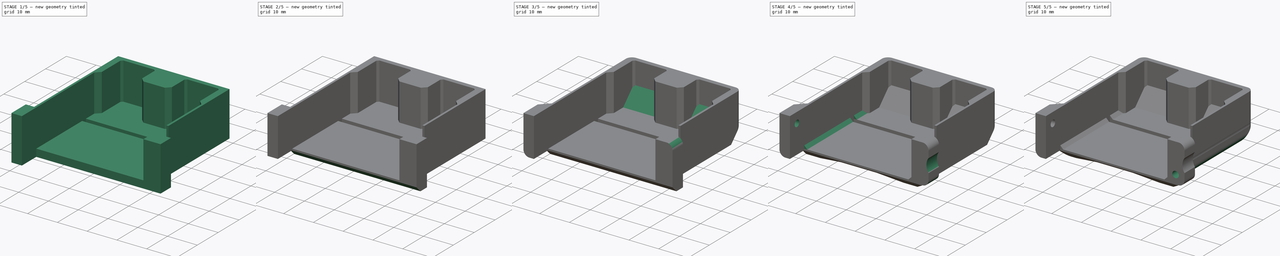
[diagram: build sequence overview — one tinted view per stage of 5, left to right]
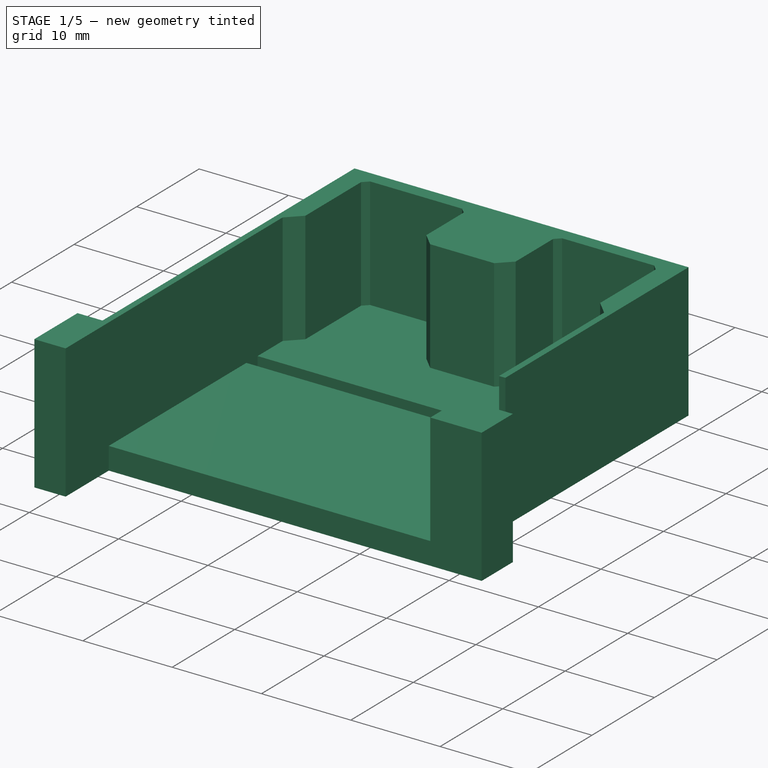
[diagram: stage 1 of 5 — iso view after this stage's code; geometry added in this stage tinted green]
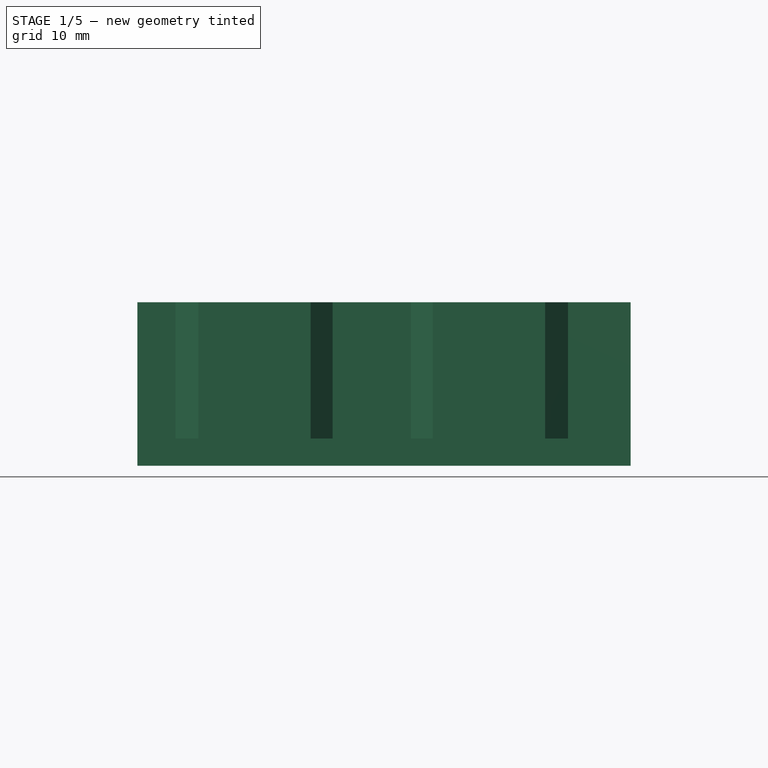
[diagram: stage 1 of 5 — front view after this stage's code; geometry added in this stage tinted green]
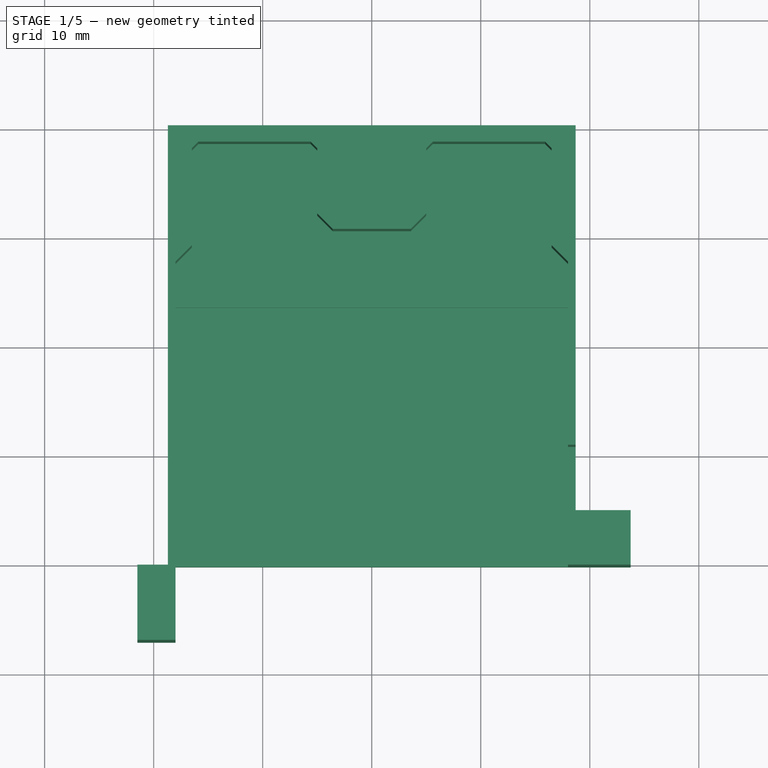
[diagram: stage 1 of 5 — top view after this stage's code; geometry added in this stage tinted green]
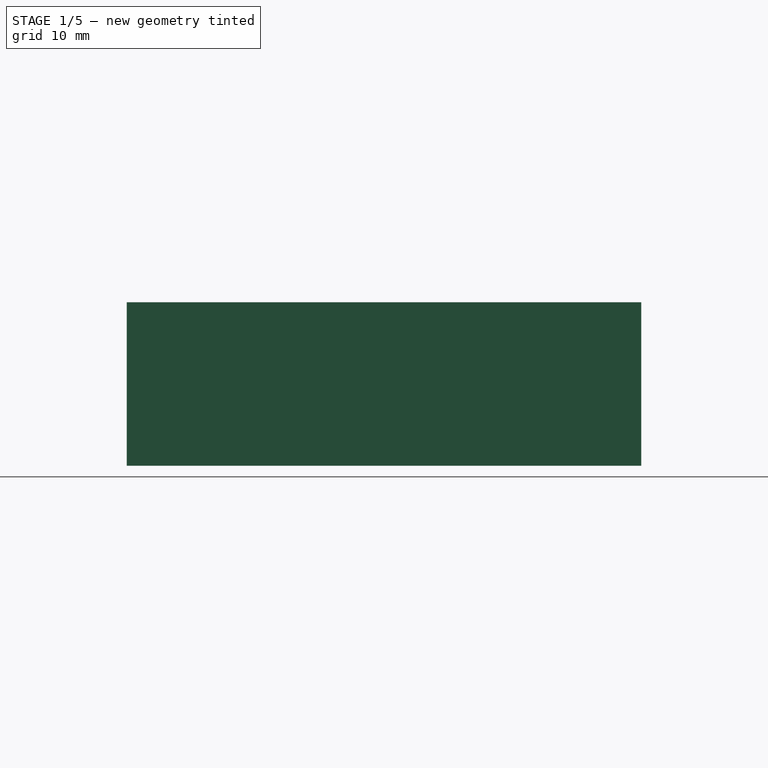
[diagram: stage 1 of 5 — right view after this stage's code; geometry added in this stage tinted green]
FCSTD DOCUMENT  (FreeCAD 1.0R39285 (Git))
Label: valve_cap
License: All rights reserved
LicenseURL: https://en.wikipedia.org/wiki/All_rights_reserved
objects: Sketcher::SketchObject×9, PartDesign::Pocket×9, PartDesign::Chamfer×6, PartDesign::Fillet×3, PartDesign::Pad×2, PartDesign::Body×1
note: 79 computed .brp shape members not serialized (recipe doc carries the construction recipe); baked Part::Feature solids carry a one-line shape summary decoded from their .brp

FEATURE [Sketcher::SketchObject] Sketch
  ArcFitTolerance = 1e-06
  AttachmentSupport = -> [XY_Plane]
  FullyConstrained = true
  MakeInternals = false
  MapMode = 5
  sketch-geometry (36):
    g0: LineSegment [constr] StartX=-18.7 StartY=-20.15 StartZ=0 EndX=18.7 EndY=-20.15 EndZ=0
    g1: LineSegment [constr] StartX=18.7 StartY=-20.15 StartZ=0 EndX=18.7 EndY=20.15 EndZ=0
    g2: LineSegment StartX=18.7 StartY=20.15 StartZ=0 EndX=-18.7 EndY=20.15 EndZ=0
    g3: LineSegment StartX=-18.7 StartY=20.15 StartZ=0 EndX=-18.7 EndY=-20.15 EndZ=0
    g4: GeomPoint [constr] X=0 Y=0 Z=0
    g5: LineSegment [constr] StartX=-18 StartY=-20.15 StartZ=0 EndX=-21.5 EndY=-20.15 EndZ=0
    g6: LineSegment StartX=-21.5 StartY=-20.15 StartZ=0 EndX=-21.5 EndY=-27.05 EndZ=0
    g7: LineSegment StartX=-21.5 StartY=-27.05 StartZ=0 EndX=-18 EndY=-27.05 EndZ=0
    g8: LineSegment StartX=-18 StartY=-27.05 StartZ=0 EndX=-18 EndY=-20.15 EndZ=0
    g9: LineSegment StartX=18.7 StartY=-15.15 StartZ=0 EndX=18.7 EndY=20.15 EndZ=0
    g10: LineSegment StartX=-18 StartY=-20.15 StartZ=0 EndX=18.7 EndY=-20.15 EndZ=0
    g11: LineSegment StartX=-18.7 StartY=-20.15 StartZ=0 EndX=-21.5 EndY=-20.15 EndZ=0
    g12: LineSegment StartX=18 StartY=-20.15 StartZ=0 EndX=23.75 EndY=-20.15 EndZ=0
    g13: LineSegment StartX=23.75 StartY=-20.15 StartZ=0 EndX=23.75 EndY=-15.15 EndZ=0
    g14: LineSegment StartX=23.75 StartY=-15.15 StartZ=0 EndX=18 EndY=-15.15 EndZ=0
    g15: LineSegment StartX=18 StartY=-15.15 StartZ=0 EndX=18 EndY=-20.15 EndZ=0
    g16: LineSegment StartX=-18 StartY=-20.15 StartZ=0 EndX=-18 EndY=7.65 EndZ=0
    g17: LineSegment StartX=18 StartY=-15.15 StartZ=0 EndX=18 EndY=7.65 EndZ=0
    g18: LineSegment StartX=-18 StartY=1.85 StartZ=0 EndX=18 EndY=1.85 EndZ=0
    g19: LineSegment StartX=-18 StartY=3.65 StartZ=0 EndX=18 EndY=3.65 EndZ=0
    g20: LineSegment StartX=18 StartY=-9.15 StartZ=0 EndX=18.7 EndY=-9.15 EndZ=0
    g21: LineSegment StartX=-18 StartY=7.65 StartZ=0 EndX=-16.5 EndY=9.15 EndZ=0
    g22: LineSegment StartX=-16.5 StartY=9.15 StartZ=0 EndX=-16.5 EndY=18.05 EndZ=0
    g23: LineSegment StartX=-16.5 StartY=18.05 StartZ=0 EndX=-15.9 EndY=18.65 EndZ=0
    g24: LineSegment StartX=-15.9 StartY=18.65 StartZ=0 EndX=-5.6 EndY=18.65 EndZ=0
    g25: LineSegment StartX=-5.6 StartY=18.65 StartZ=0 EndX=-5 EndY=18.05 EndZ=0
    g26: LineSegment StartX=-5 StartY=18.05 StartZ=0 EndX=-5 EndY=12.0642 EndZ=0
    g27: LineSegment StartX=-5 StartY=12.0642 StartZ=0 EndX=-3.58579 EndY=10.65 EndZ=0
    g28: LineSegment StartX=-3.58579 StartY=10.65 StartZ=0 EndX=3.58579 EndY=10.65 EndZ=0
    g29: LineSegment StartX=3.58579 StartY=10.65 StartZ=0 EndX=5 EndY=12.0642 EndZ=0
    g30: LineSegment StartX=5 StartY=12.0642 StartZ=0 EndX=5 EndY=18.05 EndZ=0
    g31: LineSegment StartX=5 StartY=18.05 StartZ=0 EndX=5.6 EndY=18.65 EndZ=0
    g32: LineSegment StartX=5.6 StartY=18.65 StartZ=0 EndX=15.9 EndY=18.65 EndZ=0
    g33: LineSegment StartX=15.9 StartY=18.65 StartZ=0 EndX=16.5 EndY=18.05 EndZ=0
    g34: LineSegment StartX=16.5 StartY=18.05 StartZ=0 EndX=16.5 EndY=9.15 EndZ=0
    g35: LineSegment StartX=16.5 StartY=9.15 StartZ=0 EndX=18 EndY=7.65 EndZ=0
  constraints (105):
    c: Coincident(g0,g1)
    c: Coincident(g1,g2)
    c: Coincident(g2,g3)
    c: Coincident(g3,g0)
    c: Horizontal(g0)
    c: Horizontal(g2)
    c: Vertical(g1)
    c: Vertical(g3)
    c: Symmetric(g2,g0,g4)
    c: Coincident(g4,g-1)
    c: Coincident(g5,g6)
    c: Coincident(g6,g7)
    c: Coincident(g7,g8)
    c: Coincident(g8,g5)
    c: Horizontal(g5)
    c: Horizontal(g7)
    c: Vertical(g6)
    c: Vertical(g8)
    c: PointOnObject(g5,g0)
    c: Distance(g0,g2) = 40.3
    c: Distance(g3,g1) = 37.4
    c: Coincident(g9,g1)
    c: Distance(g3,g6) = 2.8
    c: Coincident(g10,g5)
    c: Coincident(g10,g0)
    c: DistanceX(g7,g7) = 3.5
    c: DistanceY(g6,g6) = 6.9
    c: Coincident(g11,g0)
    c: Coincident(g11,g5)
    c: Coincident(g12,g13)
    c: Coincident(g13,g14)
    c: Coincident(g14,g15)
    c: Coincident(g15,g12)
    c: Horizontal(g12)
    c: Horizontal(g14)
    c: Vertical(g13)
    c: Vertical(g15)
    c: PointOnObject(g12,g10)
    c: PointOnObject(g9,g14)
    c: Perpendicular(g2,g9)
    c: Distance(g13,g15) = 5.75
    c: Distance(g9,g13) = 5.05
    c: Distance(g12,g14) = 5
    c: Coincident(g16,g5)
    c: Vertical(g16)
    c: Coincident(g17,g14)
    c: Vertical(g17)
    c: PointOnObject(g18,g16)
    c: PointOnObject(g18,g17)
    c: Horizontal(g18)
    c: Distance(g10,g18) = 22
    c: PointOnObject(g19,g16)
    c: PointOnObject(g19,g17)
    c: Horizontal(g19)
    c: Distance(g18,g19) = 1.8
    c: PointOnObject(g20,g17)
    c: PointOnObject(g20,g9)
    c: Horizontal(g20)
    c: Distance(g14,g20) = 6
    c: Coincident(g21,g16)
    c: Vertical(g22)
    c: Coincident(g23,g22)
    c: Coincident(g23,g24)
    c: Horizontal(g24)
    c: Coincident(g24,g25)
    c: Coincident(g25,g26)
    c: Vertical(g26)
    c: Coincident(g26,g27)
    c: Coincident(g27,g28)
    c: Horizontal(g28)
    c: Coincident(g28,g29)
    c: Coincident(g29,g30)
    c: Vertical(g30)
    c: Coincident(g30,g31)
    c: Coincident(g31,g32)
    c: Horizontal(g32)
    c: Coincident(g32,g33)
    c: Coincident(g33,g34)
    c: Vertical(g34)
    c: Coincident(g34,g35)
    c: Coincident(g35,g17)
    c: Distance(g2,g24) = 1.5
    c: Distance(g2,g32) = 1.5
    c: Distance(g22,g16) = 1.5
    c: Distance(g34,g17) = 1.5
    c: Coincident(g21,g22)
    c: Distance(g26,g22) = 11.5
    c: Distance(g34,g30) = 11.5
    c: Distance(g28,g2) = 9.5
    c: Angle(g16,g21) = 2.35619
    c: Angle(g22,g23) = 2.35619
    c: Angle(g24,g25) = 2.35619
    c: Angle(g27,g26) = 2.35619
    c: Distance(g24,g26) = 0.6
    c: Distance(g23,g22) = 0.6
    c: Angle(g29,g28) = 2.35619
    c: Angle(g30,g31) = 2.35619
    c: Angle(g32,g33) = 2.35619
    c: Angle(g35,g34) = 2.35619
    c: DistanceX(g32,g32) = 10.3
    c: DistanceY(g22,g22) = 8.9
    c: DistanceY(g34,g34) = 8.9
    c: Distance(g32,g34) = 0.6
    c: Distance(g29,g29) = 2
    c: Distance(g27,g27) = 2
FEATURE [Sketcher::SketchObject] Sketch002
  ArcFitTolerance = 1e-06
  AttachmentSupport = -> [XY_Plane]
  ExternalGeometry = -> [Sketch]
  FullyConstrained = true
  MakeInternals = false
  MapMode = 5
  sketch-geometry (18):
    g0: LineSegment StartX=-18 StartY=-20.15 StartZ=0 EndX=-18 EndY=7.65 EndZ=0
    g1: LineSegment StartX=-18 StartY=7.65 StartZ=0 EndX=-16.5 EndY=9.15 EndZ=0
    g2: LineSegment StartX=-16.5 StartY=9.15 StartZ=0 EndX=-16.5 EndY=18.05 EndZ=0
    g3: LineSegment StartX=-16.5 StartY=18.05 StartZ=0 EndX=-15.9 EndY=18.65 EndZ=0
    g4: LineSegment StartX=-15.9 StartY=18.65 StartZ=0 EndX=-5.6 EndY=18.65 EndZ=0
    g5: LineSegment StartX=-5.6 StartY=18.65 StartZ=0 EndX=-5 EndY=18.05 EndZ=0
    g6: LineSegment StartX=-5 StartY=18.05 StartZ=0 EndX=-5 EndY=12.0642 EndZ=0
    g7: LineSegment StartX=-5 StartY=12.0642 StartZ=0 EndX=-3.58579 EndY=10.65 EndZ=0
    g8: LineSegment StartX=-3.58579 StartY=10.65 StartZ=0 EndX=3.58579 EndY=10.65 EndZ=0
    g9: LineSegment StartX=3.58579 StartY=10.65 StartZ=0 EndX=5 EndY=12.0642 EndZ=0
    g10: LineSegment StartX=5 StartY=12.0642 StartZ=0 EndX=5 EndY=18.05 EndZ=0
    g11: LineSegment StartX=5 StartY=18.05 StartZ=0 EndX=5.6 EndY=18.65 EndZ=0
    g12: LineSegment StartX=5.6 StartY=18.65 StartZ=0 EndX=15.9 EndY=18.65 EndZ=0
    g13: LineSegment StartX=15.9 StartY=18.65 StartZ=0 EndX=16.5 EndY=18.05 EndZ=0
    g14: LineSegment StartX=16.5 StartY=18.05 StartZ=0 EndX=16.5 EndY=9.15 EndZ=0
    g15: LineSegment StartX=16.5 StartY=9.15 StartZ=0 EndX=18 EndY=7.65 EndZ=0
    g16: LineSegment StartX=18 StartY=7.65 StartZ=0 EndX=18 EndY=-20.15 EndZ=0
    g17: LineSegment StartX=18 StartY=-20.15 StartZ=0 EndX=-18 EndY=-20.15 EndZ=0
  constraints (36):
    c: Coincident(g-4,g0)
    c: Coincident(g0,g-5)
    c: Coincident(g0,g1)
    c: Coincident(g1,g-6)
    c: Coincident(g1,g2)
    c: Coincident(g2,g-6)
    c: Coincident(g2,g3)
    c: Coincident(g3,g-7)
    c: Coincident(g3,g4)
    c: Coincident(g4,g-7)
    c: Coincident(g4,g5)
    c: Coincident(g5,g-8)
    c: Coincident(g5,g6)
    c: Coincident(g6,g-8)
    c: Coincident(g6,g7)
    c: Coincident(g7,g-9)
    c: Coincident(g7,g8)
    c: Coincident(g8,g-9)
    c: Coincident(g8,g9)
    c: Coincident(g9,g-10)
    c: Coincident(g9,g10)
    c: Coincident(g10,g-10)
    c: Coincident(g10,g11)
    c: Coincident(g11,g-11)
    c: Coincident(g11,g12)
    c: Coincident(g12,g-11)
    c: Coincident(g12,g13)
    c: Coincident(g13,g-12)
    c: Coincident(g13,g14)
    c: Coincident(g14,g-12)
    c: Coincident(g14,g15)
    c: Coincident(g15,g-13)
    c: Coincident(g15,g16)
    c: Coincident(g16,g-14)
    c: Coincident(g16,g17)
    c: Coincident(g17,g0)
FEATURE [PartDesign::Pad] Pad
  Direction = (0,0,1)
  Length = 2.5
  Length2 = 10
  Profile = -> Sketch002
  ReferenceAxis = -> Sketch002 [N_Axis]
  Refine = true
  Suppressed = false
  Type = 0
FEATURE [Sketcher::SketchObject] Sketch003
  ArcFitTolerance = 1e-06
  AttachmentSupport = -> [Pad]
  ExternalGeometry = -> [Sketch]
  FullyConstrained = true
  MakeInternals = false
  MapMode = 5
  Placement = pos=(0,0,2.5) rot=(0,0,1;0rad)
  sketch-geometry (4):
    g0: LineSegment StartX=-18 StartY=3.65 StartZ=0 EndX=-18 EndY=1.85 EndZ=0
    g1: LineSegment StartX=-18 StartY=1.85 StartZ=0 EndX=18 EndY=1.85 EndZ=0
    g2: LineSegment StartX=18 StartY=1.85 StartZ=0 EndX=18 EndY=3.65 EndZ=0
    g3: LineSegment StartX=18 StartY=3.65 StartZ=0 EndX=-18 EndY=3.65 EndZ=0
  constraints (10):
    c: Coincident(g0,g1)
    c: Coincident(g1,g2)
    c: Coincident(g2,g3)
    c: Coincident(g3,g0)
    c: Vertical(g0)
    c: Vertical(g2)
    c: Horizontal(g1)
    c: Horizontal(g3)
    c: Coincident(g0,g-3)
    c: Coincident(g1,g-4)
FEATURE [PartDesign::Pocket] Pocket
  BaseFeature = -> Pad
  Direction = (0,0,-1)
  Length = 1.3
  Length2 = 5
  Profile = -> Sketch003
  ReferenceAxis = -> Sketch003 [N_Axis]
  Refine = true
  Suppressed = false
  Type = 0
FEATURE [Sketcher::SketchObject] Sketch004
  ArcFitTolerance = 1e-06
  AttachmentSupport = -> [XY_Plane]
  ExternalGeometry = -> [Sketch,Pocket]
  FullyConstrained = true
  MakeInternals = false
  MapMode = 5
  sketch-geometry (26):
    g0: LineSegment StartX=-18.7 StartY=-20.15 StartZ=0 EndX=-21.5 EndY=-20.15 EndZ=0
    g1: LineSegment StartX=-21.5 StartY=-20.15 StartZ=0 EndX=-21.5 EndY=-27.05 EndZ=0
    g2: LineSegment StartX=-21.5 StartY=-27.05 StartZ=0 EndX=-18 EndY=-27.05 EndZ=0
    g3: LineSegment StartX=-18 StartY=-27.05 StartZ=0 EndX=-18 EndY=7.65 EndZ=0
    g4: LineSegment StartX=-18 StartY=7.65 StartZ=0 EndX=-16.5 EndY=9.15 EndZ=0
    g5: LineSegment StartX=-16.5 StartY=9.15 StartZ=0 EndX=-16.5 EndY=18.05 EndZ=0
    g6: LineSegment StartX=-16.5 StartY=18.05 StartZ=0 EndX=-15.9 EndY=18.65 EndZ=0
    g7: LineSegment StartX=-15.9 StartY=18.65 StartZ=0 EndX=-5.6 EndY=18.65 EndZ=0
    g8: LineSegment StartX=-5.6 StartY=18.65 StartZ=0 EndX=-5 EndY=18.05 EndZ=0
    g9: LineSegment StartX=-5 StartY=18.05 StartZ=0 EndX=-5 EndY=12.0642 EndZ=0
    g10: LineSegment StartX=-5 StartY=12.0642 StartZ=0 EndX=-3.58579 EndY=10.65 EndZ=0
    g11: LineSegment StartX=-3.58579 StartY=10.65 StartZ=0 EndX=3.58579 EndY=10.65 EndZ=0
    g12: LineSegment StartX=3.58579 StartY=10.65 StartZ=0 EndX=5 EndY=12.0642 EndZ=0
    g13: LineSegment StartX=5 StartY=12.0642 StartZ=0 EndX=5 EndY=18.05 EndZ=0
    g14: LineSegment StartX=5 StartY=18.05 StartZ=0 EndX=5.6 EndY=18.65 EndZ=0
    g15: LineSegment StartX=5.6 StartY=18.65 StartZ=0 EndX=15.9 EndY=18.65 EndZ=0
    g16: LineSegment StartX=15.9 StartY=18.65 StartZ=0 EndX=16.5 EndY=18.05 EndZ=0
    g17: LineSegment StartX=16.5 StartY=18.05 StartZ=0 EndX=16.5 EndY=9.15 EndZ=0
    g18: LineSegment StartX=16.5 StartY=9.15 StartZ=0 EndX=18 EndY=7.65 EndZ=0
    g19: LineSegment StartX=18 StartY=7.65 StartZ=0 EndX=18 EndY=-20.15 EndZ=0
    g20: LineSegment StartX=18 StartY=-20.15 StartZ=0 EndX=23.75 EndY=-20.15 EndZ=0
    g21: LineSegment StartX=23.75 StartY=-20.15 StartZ=0 EndX=23.75 EndY=-15.15 EndZ=0
    g22: LineSegment StartX=23.75 StartY=-15.15 StartZ=0 EndX=18.7 EndY=-15.15 EndZ=0
    g23: LineSegment StartX=18.7 StartY=-15.15 StartZ=0 EndX=18.7 EndY=20.15 EndZ=0
    g24: LineSegment StartX=18.7 StartY=20.15 StartZ=0 EndX=-18.7 EndY=20.15 EndZ=0
    g25: LineSegment StartX=-18.7 StartY=20.15 StartZ=0 EndX=-18.7 EndY=-20.15 EndZ=0
  constraints (52):
    c: Coincident(g-8,g0)
    c: Coincident(g0,g-6)
    c: Coincident(g0,g1)
    c: Coincident(g1,g-4)
    c: Coincident(g1,g2)
    c: Coincident(g2,g-5)
    c: Coincident(g2,g3)
    c: Coincident(g3,g-23)
    c: Coincident(g3,g4)
    c: Coincident(g4,g-22)
    c: Coincident(g4,g5)
    c: Coincident(g5,g-22)
    c: Coincident(g5,g6)
    c: Coincident(g6,g-21)
    c: Coincident(g6,g7)
    c: Coincident(g7,g-21)
    c: Coincident(g7,g8)
    c: Coincident(g8,g-20)
    c: Coincident(g8,g9)
    c: Coincident(g9,g-20)
    c: Coincident(g9,g10)
    c: Coincident(g10,g-19)
    c: Coincident(g10,g11)
    c: Coincident(g11,g-19)
    c: Coincident(g11,g12)
    c: Coincident(g12,g-18)
    c: Coincident(g12,g13)
    c: Coincident(g13,g-18)
    c: Coincident(g13,g14)
    c: Coincident(g14,g-17)
    c: Coincident(g14,g15)
    c: Coincident(g15,g-17)
    c: Coincident(g15,g16)
    c: Coincident(g16,g-16)
    c: Coincident(g16,g17)
    c: Coincident(g17,g-16)
    c: Coincident(g17,g18)
    c: Coincident(g18,g-15)
    c: Coincident(g18,g19)
    c: Coincident(g19,g-14)
    c: Coincident(g19,g20)
    c: Coincident(g20,g-13)
    c: Coincident(g20,g21)
    c: Coincident(g21,g-12)
    c: Coincident(g21,g22)
    c: Coincident(g22,g-10)
    c: Coincident(g22,g23)
    c: Coincident(g23,g-10)
    c: Coincident(g23,g24)
    c: Coincident(g24,g-9)
    c: Coincident(g24,g25)
    c: Coincident(g25,g0)
FEATURE [PartDesign::Pad] Pad001
  BaseFeature = -> Pocket
  Direction = (0,0,1)
  Length = 15
  Length2 = 10
  Profile = -> Sketch004
  ReferenceAxis = -> Sketch004 [N_Axis]
  Refine = true
  Suppressed = false
  Type = 0
FEATURE [Sketcher::SketchObject] Sketch005
  ArcFitTolerance = 1e-06
  AttachmentSupport = -> [Pad001]
  ExternalGeometry = -> [Sketch]
  FullyConstrained = true
  MakeInternals = false
  MapMode = 5
  Placement = pos=(0,0,15) rot=(0,0,1;0rad)
  sketch-geometry (4):
    g0: LineSegment StartX=18.7 StartY=-9.15 StartZ=0 EndX=18 EndY=-9.15 EndZ=0
    g1: LineSegment StartX=18 StartY=-9.15 StartZ=0 EndX=18 EndY=-15.15 EndZ=0
    g2: LineSegment StartX=18 StartY=-15.15 StartZ=0 EndX=18.7 EndY=-15.15 EndZ=0
    g3: LineSegment StartX=18.7 StartY=-15.15 StartZ=0 EndX=18.7 EndY=-9.15 EndZ=0
  constraints (10):
    c: Coincident(g0,g1)
    c: Coincident(g1,g2)
    c: Coincident(g2,g3)
    c: Coincident(g3,g0)
    c: Horizontal(g0)
    c: Horizontal(g2)
    c: Vertical(g1)
    c: Vertical(g3)
    c: Coincident(g0,g-3)
    c: Coincident(g1,g-4)
FEATURE [PartDesign::Pocket] Pocket001
  BaseFeature = -> Pad001
  Direction = (0,0,-1)
  Length = 11.3
  Length2 = 5
  Profile = -> Sketch005
  ReferenceAxis = -> Sketch005 [N_Axis]
  Refine = true
  Suppressed = false
  Type = 0
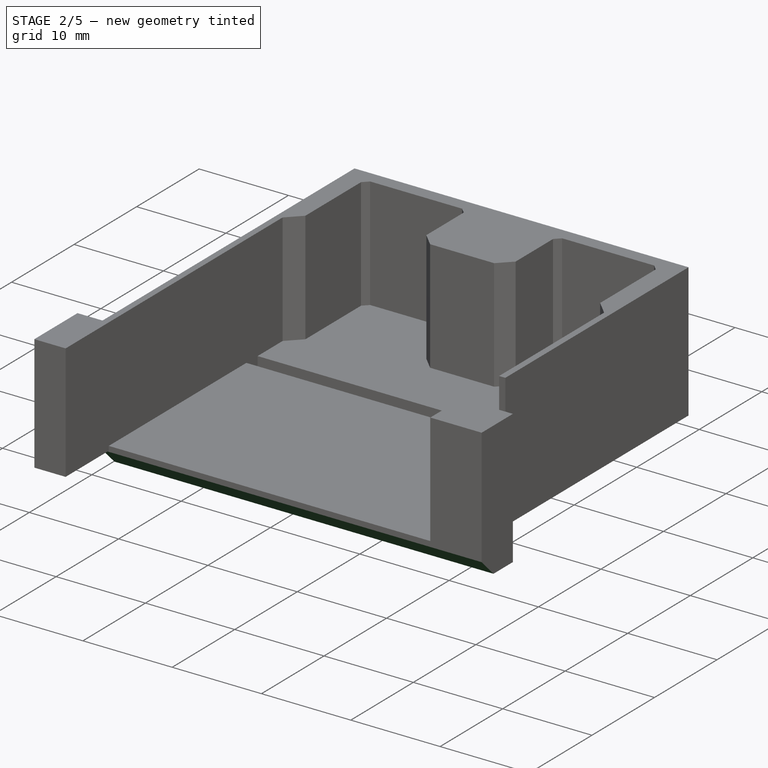
[diagram: stage 2 of 5 — iso view after this stage's code; geometry added in this stage tinted green]
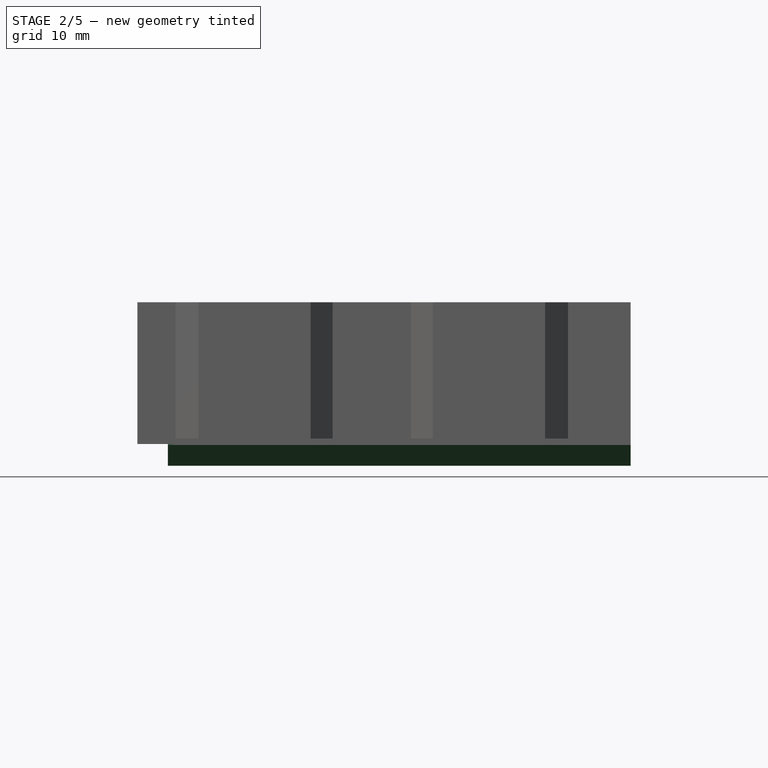
[diagram: stage 2 of 5 — front view after this stage's code; geometry added in this stage tinted green]
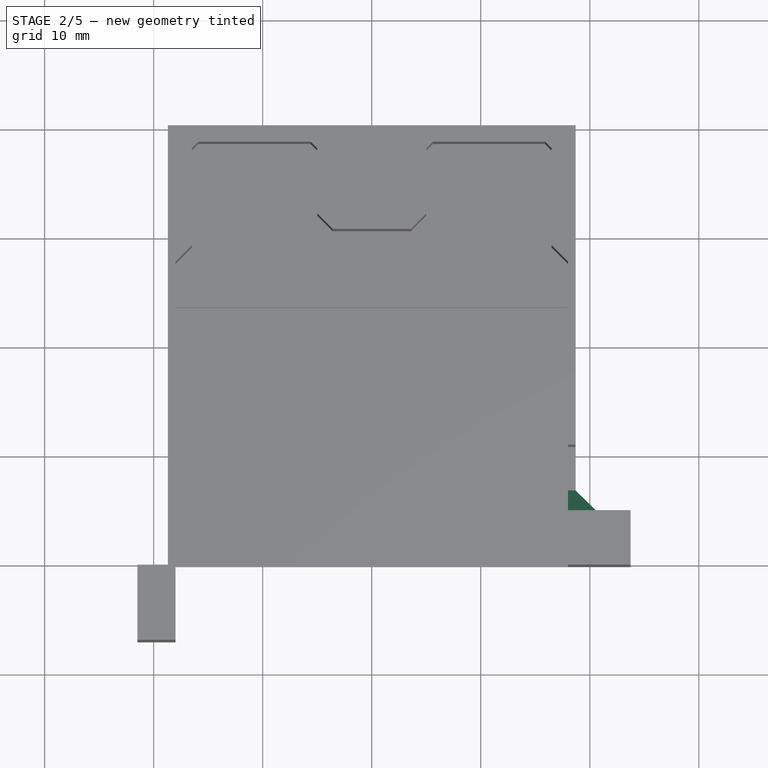
[diagram: stage 2 of 5 — top view after this stage's code; geometry added in this stage tinted green]
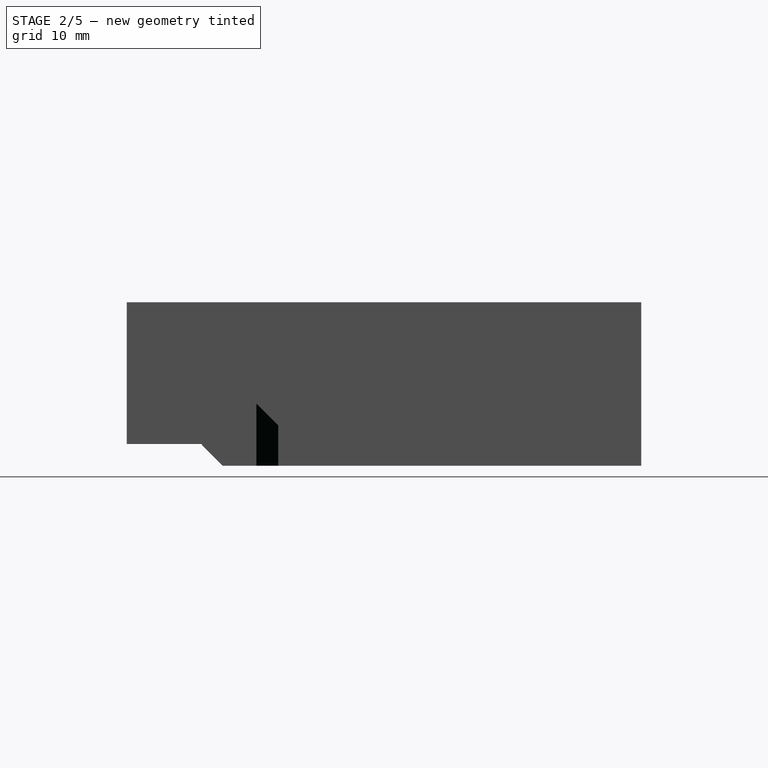
[diagram: stage 2 of 5 — right view after this stage's code; geometry added in this stage tinted green]
FEATURE [Sketcher::SketchObject] Sketch006
  ArcFitTolerance = 1e-06
  AttachmentSupport = -> [Pocket001]
  ExternalGeometry = -> [Pocket001]
  FullyConstrained = true
  MakeInternals = false
  MapMode = 5
  Placement = pos=(-21.5,0,0) rot=(0.57735,-0.57735,-0.57735;2.0944rad)
  sketch-geometry (4):
    g0: LineSegment StartX=27.05 StartY=0 StartZ=0 EndX=27.05 EndY=2 EndZ=0
    g1: LineSegment StartX=27.05 StartY=2 StartZ=0 EndX=20.15 EndY=2 EndZ=0
    g2: LineSegment StartX=20.15 StartY=2 StartZ=0 EndX=20.15 EndY=0 EndZ=0
    g3: LineSegment StartX=20.15 StartY=0 StartZ=0 EndX=27.05 EndY=0 EndZ=0
  constraints (11):
    c: Coincident(g0,g1)
    c: Coincident(g1,g2)
    c: Coincident(g2,g3)
    c: Coincident(g3,g0)
    c: Vertical(g0)
    c: Vertical(g2)
    c: Horizontal(g1)
    c: Horizontal(g3)
    c: Distance(g1,g3) = 2
    c: Coincident(g0,g-3)
    c: PointOnObject(g1,g-4)
FEATURE [PartDesign::Pocket] Pocket002
  BaseFeature = -> Pocket001
  Direction = (1,0,0)
  Length = 5
  Length2 = 5
  Profile = -> Sketch006
  ReferenceAxis = -> Sketch006 [N_Axis]
  Refine = true
  Suppressed = false
  Type = 1
FEATURE [PartDesign::Chamfer] Chamfer
  Angle = 45
  Base = -> Pocket002 [Edge33]
  BaseFeature = -> Pocket002
  ChamferType = 0
  FlipDirection = false
  Refine = true
  Size = 1.9
  Size2 = 1
  SupportTransform = false
  Suppressed = false
  UseAllEdges = false
FEATURE [PartDesign::Chamfer] Chamfer001
  Angle = 45
  Base = -> Chamfer [Edge21]
  BaseFeature = -> Chamfer
  ChamferType = 0
  FlipDirection = false
  Refine = true
  Size = 2
  Size2 = 1
  SupportTransform = false
  Suppressed = false
  UseAllEdges = false
FEATURE [PartDesign::Chamfer] Chamfer002
  Angle = 45
  Base = -> Chamfer001 [Edge10,Edge12]
  BaseFeature = -> Chamfer001
  ChamferType = 0
  FlipDirection = false
  Refine = true
  Size = 2
  Size2 = 1
  SupportTransform = false
  Suppressed = false
  UseAllEdges = false
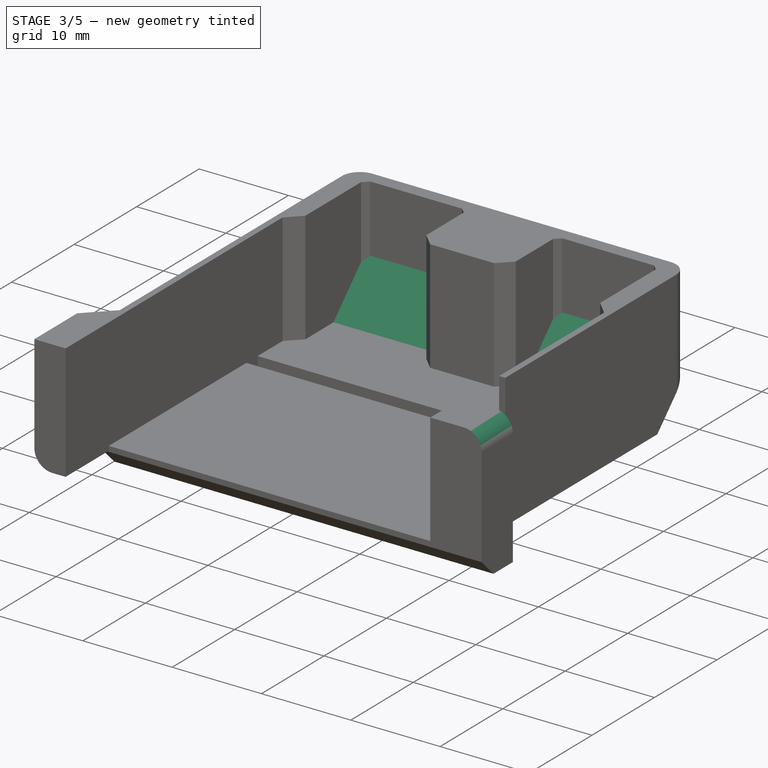
[diagram: stage 3 of 5 — iso view after this stage's code; geometry added in this stage tinted green]
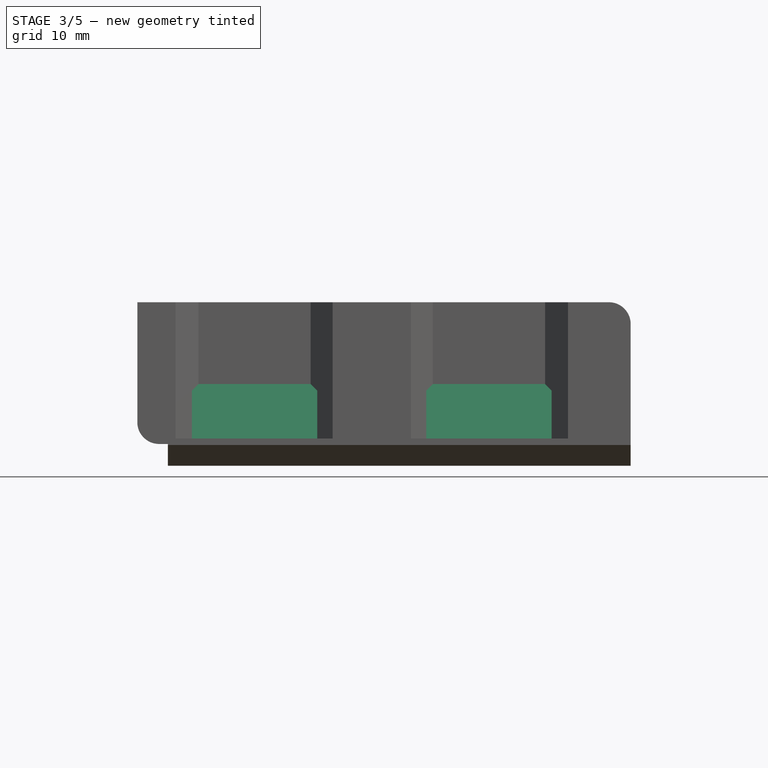
[diagram: stage 3 of 5 — front view after this stage's code; geometry added in this stage tinted green]
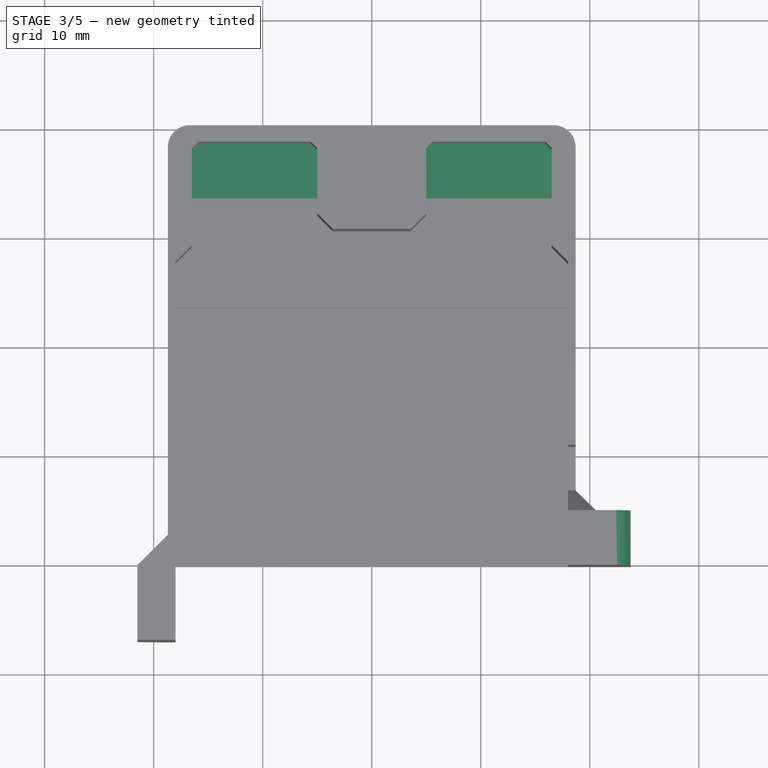
[diagram: stage 3 of 5 — top view after this stage's code; geometry added in this stage tinted green]
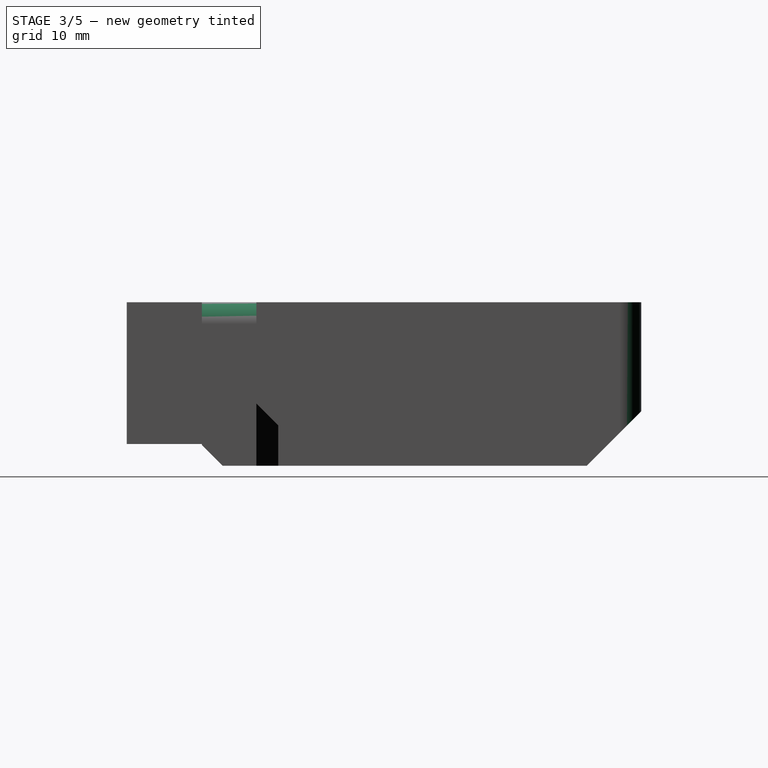
[diagram: stage 3 of 5 — right view after this stage's code; geometry added in this stage tinted green]
FEATURE [PartDesign::Chamfer] Chamfer003
  Angle = 45
  Base = -> Chamfer002 [Edge83,Edge75,Edge29]
  BaseFeature = -> Chamfer002
  ChamferType = 0
  FlipDirection = false
  Refine = true
  Size = 5
  Size2 = 1
  SupportTransform = false
  Suppressed = false
  UseAllEdges = false
FEATURE [PartDesign::Chamfer] Chamfer004
  Angle = 45
  Base = -> Chamfer003 [Edge22]
  BaseFeature = -> Chamfer003
  ChamferType = 0
  FlipDirection = false
  Refine = true
  Size = 2.75
  Size2 = 1
  SupportTransform = false
  Suppressed = false
  UseAllEdges = false
FEATURE [PartDesign::Fillet] Fillet
  Base = -> Chamfer004 [Edge38,Edge113]
  BaseFeature = -> Chamfer004
  Radius = 2
  Refine = true
  SupportTransform = false
  Suppressed = false
  UseAllEdges = false
FEATURE [PartDesign::Fillet] Fillet001
  Base = -> Fillet [Edge59,Edge15]
  BaseFeature = -> Fillet
  Radius = 2
  Refine = true
  SupportTransform = false
  Suppressed = false
  UseAllEdges = false
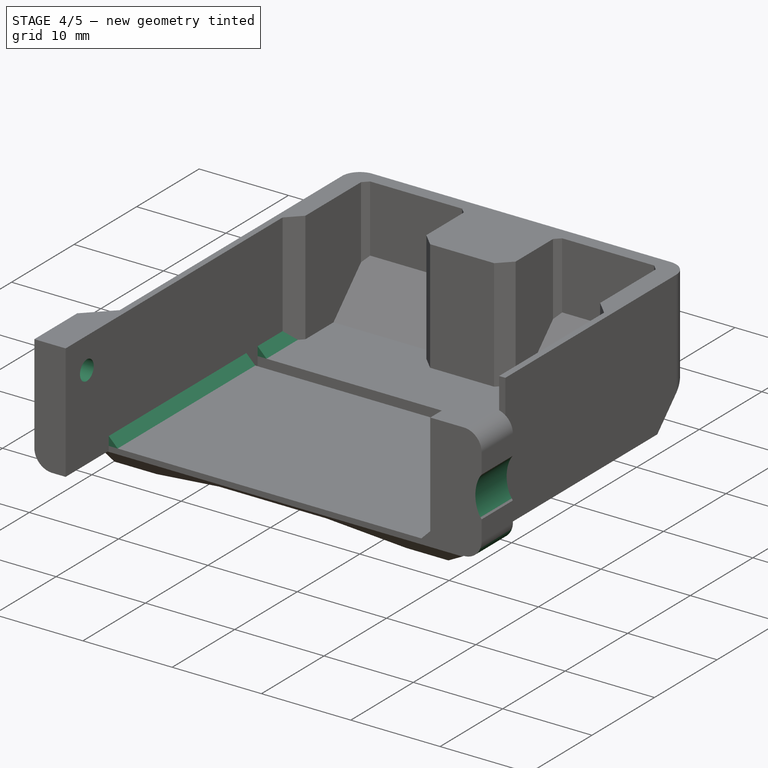
[diagram: stage 4 of 5 — iso view after this stage's code; geometry added in this stage tinted green]
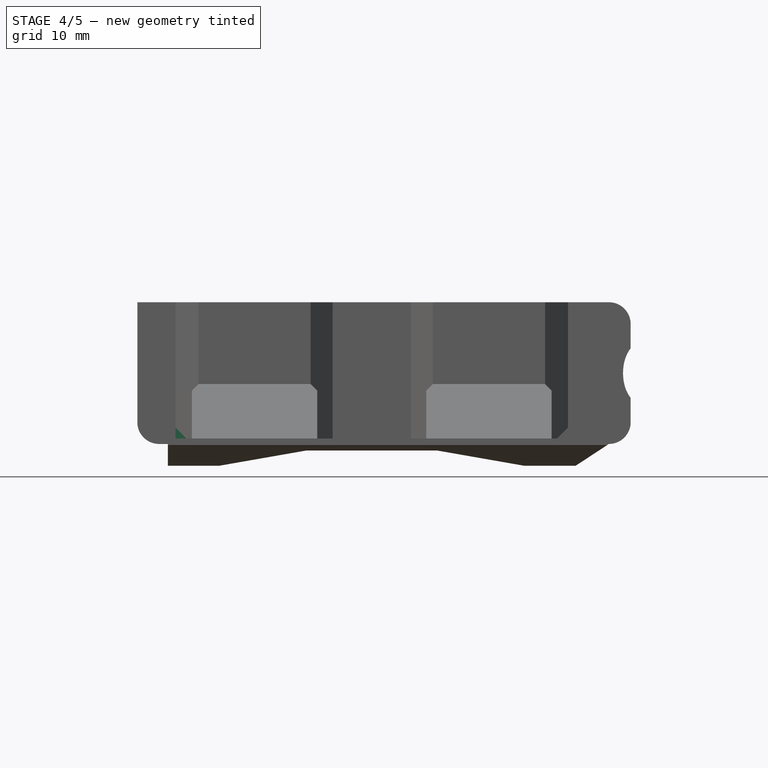
[diagram: stage 4 of 5 — front view after this stage's code; geometry added in this stage tinted green]
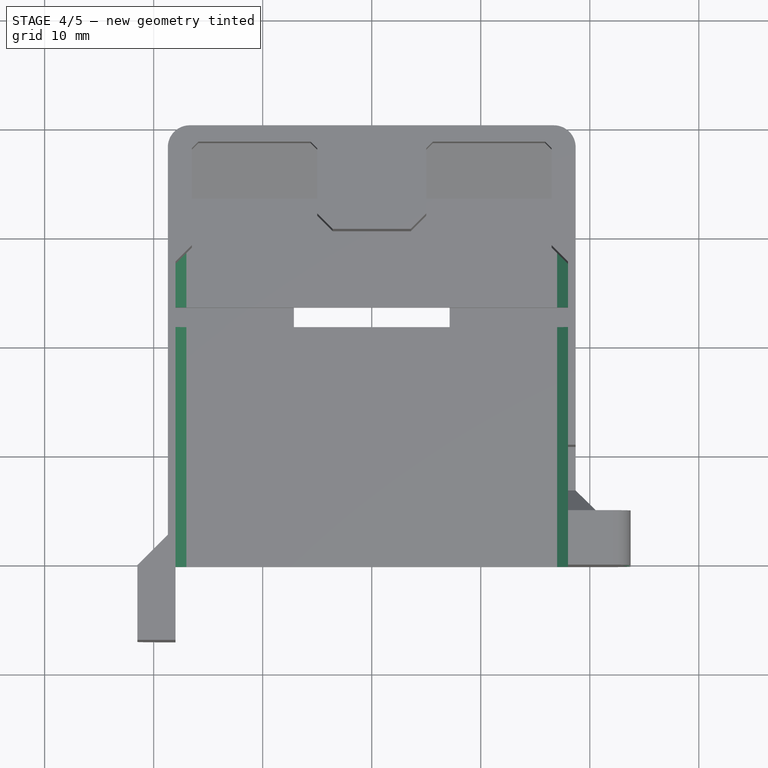
[diagram: stage 4 of 5 — top view after this stage's code; geometry added in this stage tinted green]
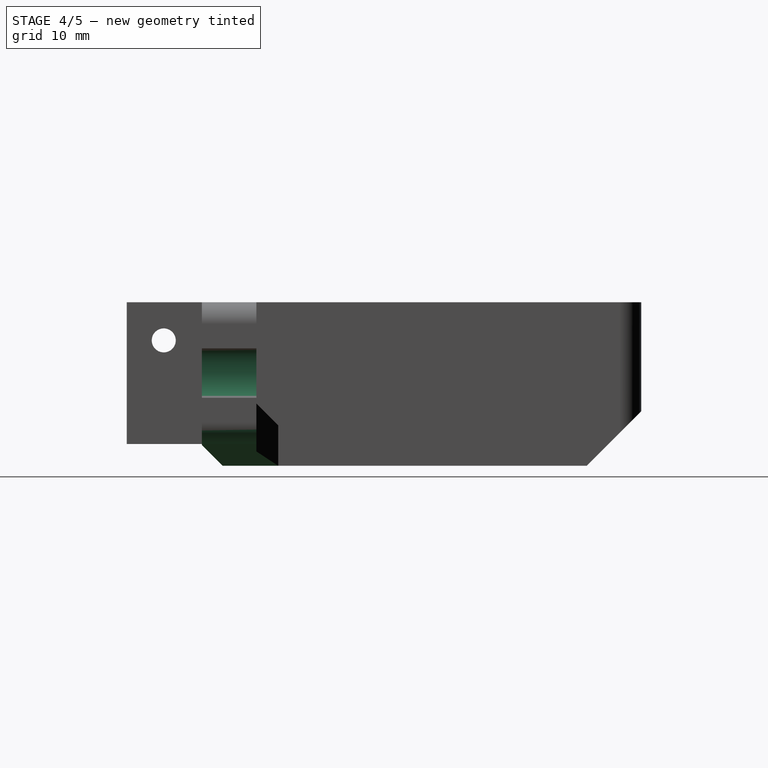
[diagram: stage 4 of 5 — right view after this stage's code; geometry added in this stage tinted green]
FEATURE [PartDesign::Chamfer] Chamfer005
  Angle = 45
  Base = -> Fillet001 [Edge74,Edge78,Edge84,Edge88]
  BaseFeature = -> Fillet001
  ChamferType = 0
  FlipDirection = false
  Refine = true
  Size = 1
  Size2 = 1
  SupportTransform = false
  Suppressed = false
  UseAllEdges = false
FEATURE [Sketcher::SketchObject] Sketch016
  ArcFitTolerance = 1e-06
  AttachmentSupport = -> [Chamfer005]
  ExternalGeometry = -> [Chamfer005]
  FullyConstrained = true
  MakeInternals = false
  MapMode = 5
  Placement = pos=(-21.5,0,0) rot=(0.57735,-0.57735,-0.57735;2.0944rad)
  sketch-geometry (2):
    g0: Circle CenterX=23.65 CenterY=11.5 CenterZ=0 NormalX=0 NormalY=0 NormalZ=1 AngleXU=0 Radius=1.1
    g1: Circle CenterX=23.65 CenterY=11.5 CenterZ=0 NormalX=0 NormalY=0 NormalZ=1 AngleXU=0 Radius=2.1
  constraints (5):
    c: Coincident(g1,g0)
    c: Distance(g0,g-4) = 3.5
    c: Distance(g0,g-5) = 3.5
    c: Diameter(g0) = 2.2
    c: Diameter(g1) = 4.2
FEATURE [Sketcher::SketchObject] Sketch017
  ArcFitTolerance = 1e-06
  AttachmentSupport = -> [Chamfer005]
  ExternalGeometry = -> [Chamfer005]
  FullyConstrained = true
  MakeInternals = false
  MapMode = 5
  Placement = pos=(2.77e-14,-15.15,0) rot=(0,0.707107,0.707107;3.14159rad)
  sketch-geometry (2):
    g0: Circle CenterX=-20.75 CenterY=5 CenterZ=0 NormalX=0 NormalY=0 NormalZ=1 AngleXU=0 Radius=1.1
    g1: Circle CenterX=-20.75 CenterY=5 CenterZ=0 NormalX=0 NormalY=0 NormalZ=1 AngleXU=0 Radius=2.1
  constraints (5):
    c: Diameter(g0) = 2.2
    c: Diameter(g1) = 4.2
    c: Coincident(g1,g0)
    c: Distance(g0,g-3) = 10
    c: Distance(g0,g-4) = 3
FEATURE [Sketcher::SketchObject] Sketch018
  ArcFitTolerance = 1e-06
  AttachmentSupport = -> [Chamfer005]
  ExternalGeometry = -> [Chamfer005]
  FullyConstrained = true
  MakeInternals = false
  MapMode = 5
  Placement = pos=(0,20.15,0) rot=(0,0.707107,0.707107;3.14159rad)
  sketch-geometry (18):
    g0: LineSegment StartX=18.7 StartY=-1.1e-15 StartZ=0 EndX=14 EndY=-1.1e-15 EndZ=0
    g1: LineSegment StartX=6 StartY=1.4 StartZ=0 EndX=-6 EndY=1.4 EndZ=0
    g2: LineSegment StartX=14 StartY=-1.1e-15 StartZ=0 EndX=6 EndY=1.4 EndZ=0
    g3: LineSegment StartX=-18.7 StartY=-2e-16 StartZ=0 EndX=-14 EndY=-2e-16 EndZ=0
    g4: LineSegment StartX=-14 StartY=-2e-16 StartZ=0 EndX=-6 EndY=1.4 EndZ=0
    g5: LineSegment StartX=-18.7 StartY=-2e-16 StartZ=0 EndX=-21.75 EndY=2 EndZ=0
    g6: ArcOfCircle CenterX=-21.75 CenterY=4 CenterZ=0 NormalX=0 NormalY=0 NormalZ=1 AngleXU=0 Radius=2 StartAngle=3.14159 EndAngle=4.71239
    g7: ArcOfEllipse CenterX=-24.75 CenterY=8.5 CenterZ=0 NormalX=0 NormalY=0 NormalZ=1 MajorRadius=2.8 MinorRadius=1.7 AngleXU=-1.5708 StartAngle=0.628875 EndAngle=2.51272
    g8: LineSegment [constr] StartX=-24.75 StartY=5.7 StartZ=0 EndX=-24.75 EndY=11.3 EndZ=0
    g9: LineSegment [constr] StartX=-23.05 StartY=8.5 StartZ=0 EndX=-26.45 EndY=8.5 EndZ=0
    g10: GeomPoint [constr] X=-24.75 Y=6.27514 Z=0
    g11: GeomPoint [constr] X=-24.75 Y=10.7249 Z=0
    g12: LineSegment StartX=-23.75 StartY=4 StartZ=0 EndX=-23.75 EndY=6.23567 EndZ=0
    g13: LineSegment StartX=-23.75 StartY=10.7643 StartZ=0 EndX=-23.75 EndY=15 EndZ=0
    g14: LineSegment StartX=18.7 StartY=-1.1e-15 StartZ=0 EndX=18.7 EndY=-1 EndZ=0
    g15: LineSegment StartX=18.7 StartY=-1 StartZ=0 EndX=-25.75 EndY=-1 EndZ=0
    g16: LineSegment StartX=-23.75 StartY=15 StartZ=0 EndX=-25.75 EndY=15 EndZ=0
    g17: LineSegment StartX=-25.75 StartY=15 StartZ=0 EndX=-25.75 EndY=-1 EndZ=0
  constraints (44):
    c: Distance(g0) = 4.7
    c: Coincident(g0,g-6)
    c: Horizontal(g0)
    c: Distance(g1) = 12
    c: Distance(g0,g1) = 1.4
    c: Coincident(g2,g0)
    c: Coincident(g2,g1)
    c: Distance(g3) = 4.7
    c: Coincident(g3,g-3)
    c: Horizontal(g3)
    c: Coincident(g4,g3)
    c: Coincident(g4,g1)
    c: Symmetric(g1,g1,g-2)
    c: Coincident(g5,g3)
    c: DistanceX(g5,g3) = 3.05
    c: DistanceY(g3,g5) = 2
    c: Coincident(g6,g5)
    c: PointOnObject(g6,g-4)
    c: DistanceX(g6,g3) = 3.05
    c: DistanceY(g-1,g6) = 4
    c: InternalAlignment(g8-g11 -> g7) x4
    c: Distance(g7,g8) = 2.8
    c: Angle(g8) = 1.5708
    c: Distance(g7,g9) = 1.7
    c: Distance(g7,g-4) = 1
    c: Distance(g7,g-5) = 6.5
    c: Coincident(g12,g6)
    c: Vertical(g12)
    c: PointOnObject(g13,g-4)
    c: Vertical(g13)
    c: PointOnObject(g13,g-5)
    c: Coincident(g7,g13)
    c: Coincident(g7,g12)
    c: Distance(g14) = 1
    c: Coincident(g14,g0)
    c: Vertical(g14)
    c: Coincident(g15,g14)
    c: Horizontal(g15)
    c: Distance(g16) = 2
    c: Coincident(g16,g13)
    c: Horizontal(g16)
    c: Coincident(g17,g16)
    c: Vertical(g17)
    c: Coincident(g15,g17)
FEATURE [PartDesign::Pocket] Pocket003
  BaseFeature = -> Chamfer005
  Direction = (0,-1,2e-16)
  Length = 5
  Length2 = 5
  Profile = -> Sketch018
  ReferenceAxis = -> Sketch018 [N_Axis]
  Refine = true
  Suppressed = false
  Type = 1
FEATURE [PartDesign::Pocket] Pocket004
  BaseFeature = -> Pocket003
  Direction = (1,0,0)
  Length = 1.5
  Length2 = 5
  Profile = -> Sketch016
  ReferenceAxis = -> Sketch016 [N_Axis]
  Refine = true
  Suppressed = false
  Type = 0
FEATURE [PartDesign::Pocket] Pocket005
  BaseFeature = -> Pocket004
  Direction = (-1,0,0)
  Length = 5
  Length2 = 5
  Profile = -> Pocket004 [Edge195]
  Refine = true
  Reversed = true
  Suppressed = false
  Type = 1
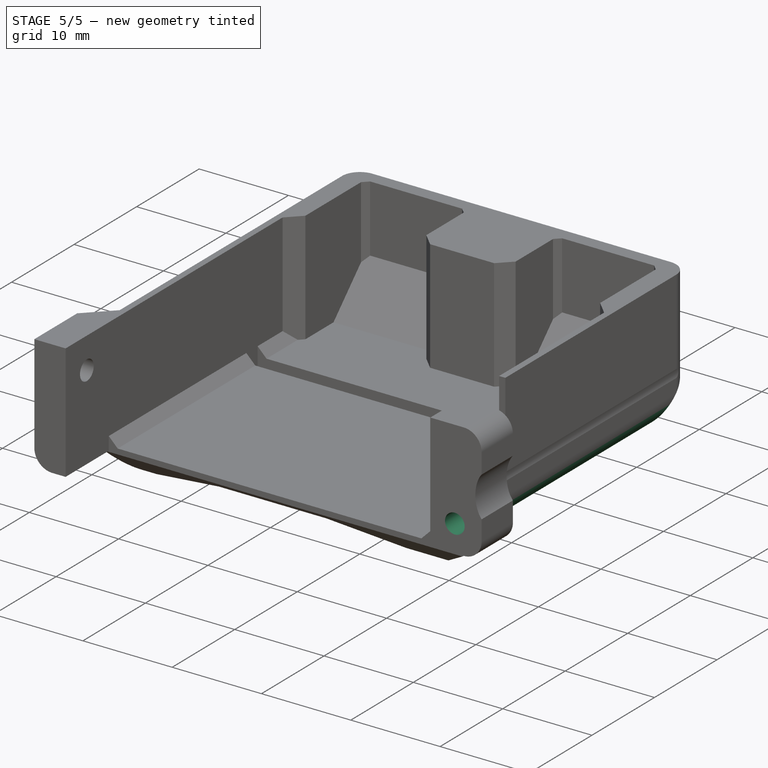
[diagram: stage 5 of 5 — iso view after this stage's code; geometry added in this stage tinted green]
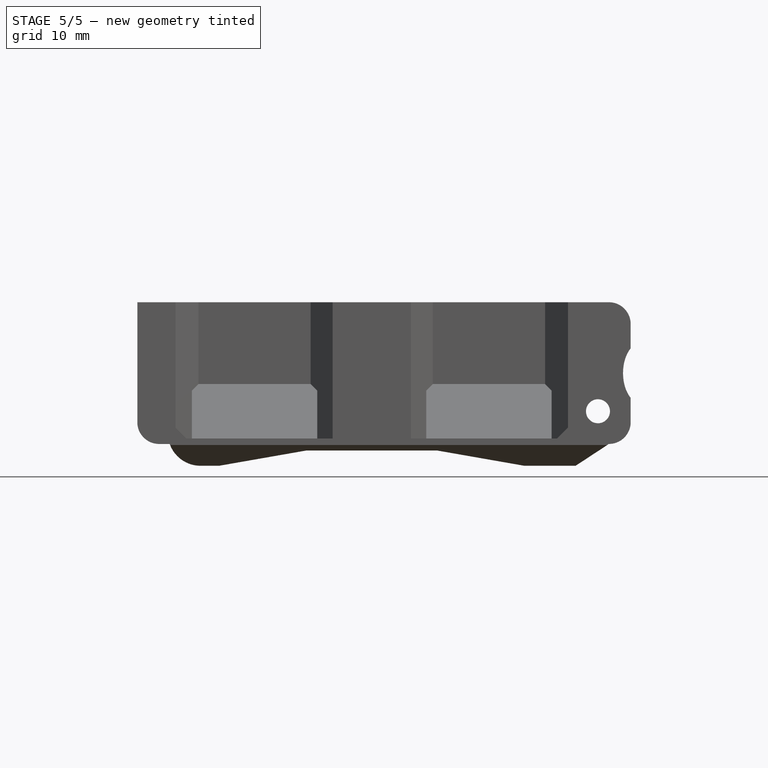
[diagram: stage 5 of 5 — front view after this stage's code; geometry added in this stage tinted green]
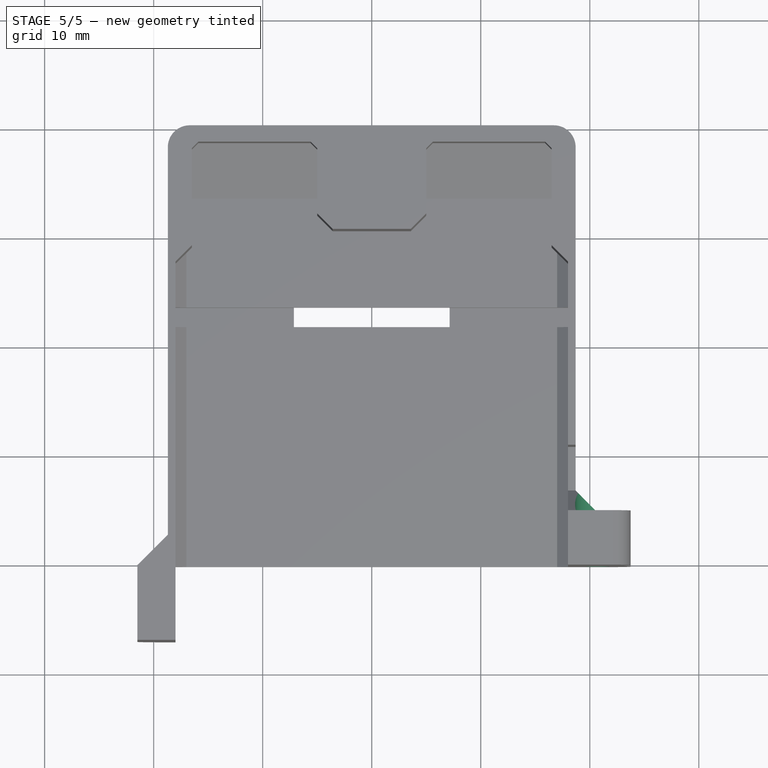
[diagram: stage 5 of 5 — top view after this stage's code; geometry added in this stage tinted green]
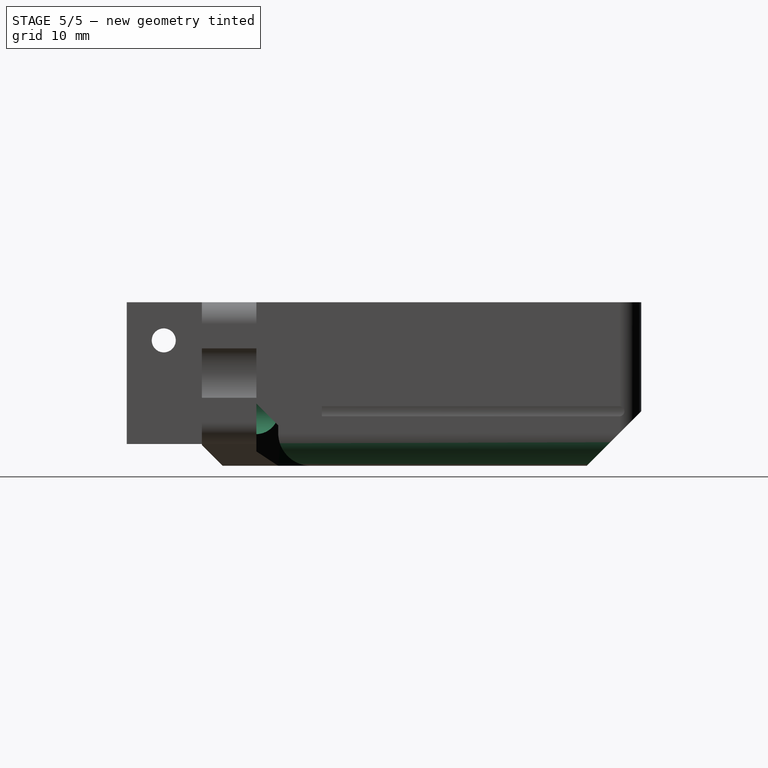
[diagram: stage 5 of 5 — right view after this stage's code; geometry added in this stage tinted green]
FEATURE [PartDesign::Pocket] Pocket006
  BaseFeature = -> Pocket005
  Direction = (1.8e-15,-1,2e-16)
  Length = 1.5
  Length2 = 5
  Profile = -> Sketch017
  ReferenceAxis = -> Sketch017 [N_Axis]
  Refine = true
  Suppressed = false
  Type = 0
FEATURE [PartDesign::Pocket] Pocket007
  BaseFeature = -> Pocket006
  Direction = (1.8e-15,-1,2e-16)
  Length = 5
  Length2 = 5
  Profile = -> Sketch017 [Edge2]
  ReferenceAxis = -> Sketch017 [N_Axis]
  Refine = true
  Reversed = true
  Suppressed = false
  Type = 1
FEATURE [PartDesign::Pocket] Pocket008
  BaseFeature = -> Pocket007
  Direction = (1.8e-15,-1,2e-16)
  Length = 5
  Length2 = 5
  Profile = -> Sketch017 [Edge1]
  ReferenceAxis = -> Sketch017 [N_Axis]
  Refine = true
  Suppressed = false
  Type = 1
FEATURE [PartDesign::Fillet] Fillet002
  Base = -> Pocket008 [Edge156,Edge62]
  BaseFeature = -> Pocket008
  Radius = 3
  Refine = true
  SupportTransform = false
  Suppressed = false
  UseAllEdges = false
FEATURE [PartDesign::Body] Body
  AllowCompound = false
  Group = -> [Sketch,Sketch002,Pad,Sketch003,Pocket,Sketch004,Pad001,Sketch005,Pocket001,Sketch006,Pocket002,Chamfer,Chamfer001,Chamfer002,Chamfer003,Chamfer004,Fillet,Fillet001,Chamfer005,Sketch016,Sketch017,Sketch018,Pocket003,Pocket004,Pocket005,Pocket006,Pocket007,Pocket008,Fillet002]
  Origin = -> Origin
  Tip = -> Fillet002
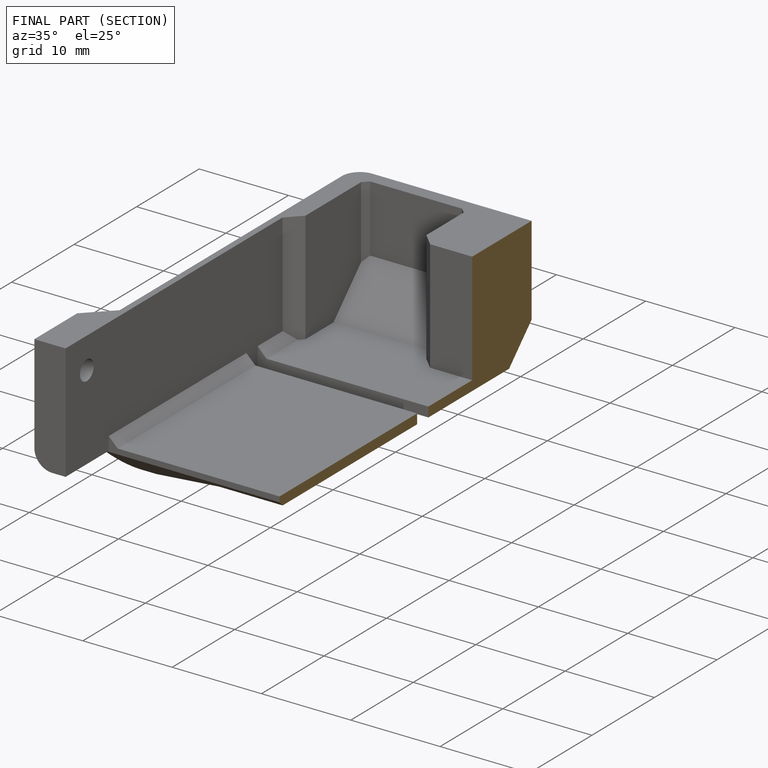
[diagram: finished part — half-section view (interior)]
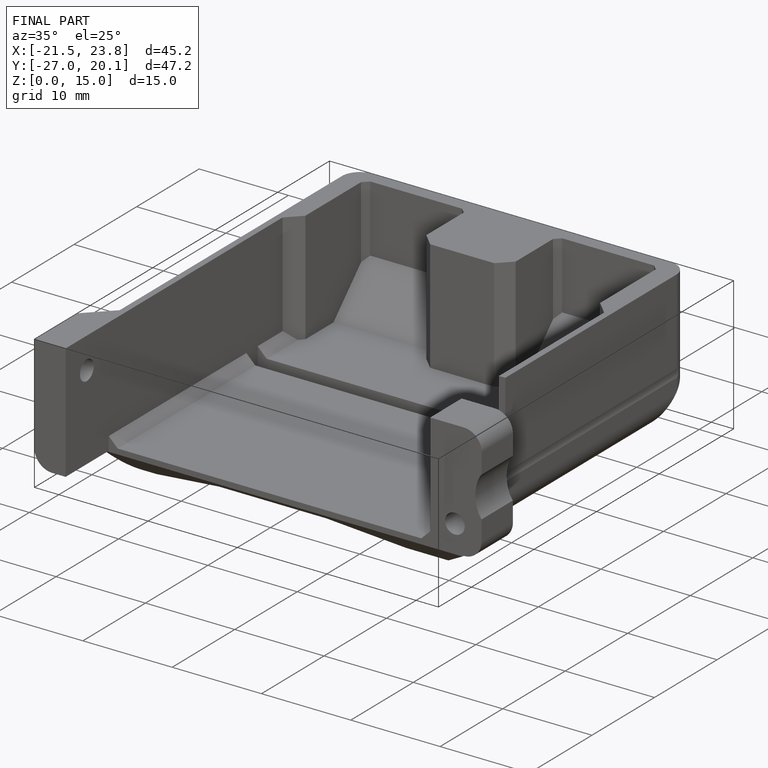
[diagram: finished part — iso view with bounding-box wireframe]
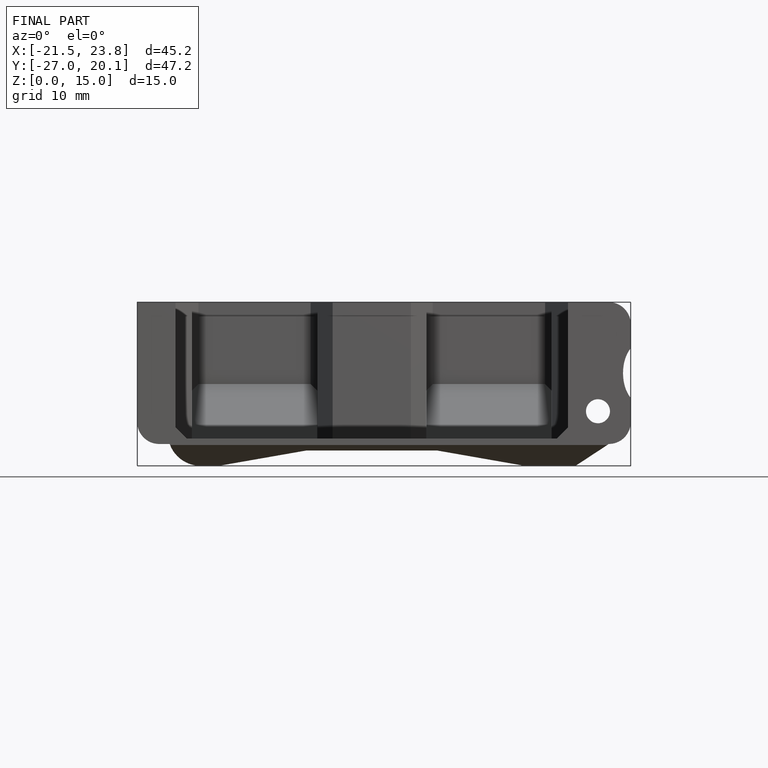
[diagram: finished part — front view with bounding-box wireframe]
